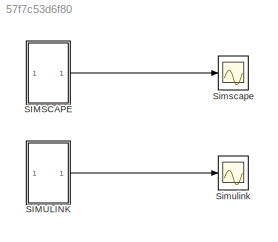
MODEL slx_57f7c53d6f80
KIND model
CONFIG AbsTol = auto
CONFIG EnableMultiTasking = off
CONFIG FixedStep = auto
CONFIG MaxStep = auto
CONFIG MinStep = auto
CONFIG RelTol = 1e-3
CONFIG SampleTimeConstraint = Unconstrained
CONFIG SolverName = VariableStepAuto
CONFIG StartTime = 0.0
CONFIG StopTime = 10
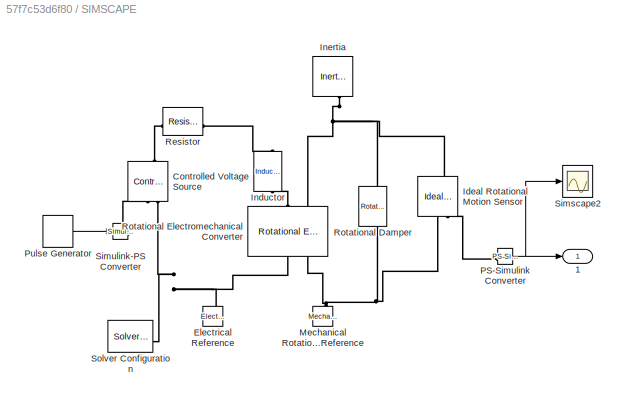
BLOCK [SubSystem] SIMSCAPE
BLOCK [Outport] SIMSCAPE/1
BLOCK [Reference] SIMSCAPE/Controlled Voltage Source  REF=fl_lib/Electrical/Electrical Sources/Controlled Voltage
Source
  NameLocation = right
  SourceBlock = fl_lib/Electrical/Electrical Sources/Controlled Voltage\nSource
  SourceType = Controlled Voltage\nSource
BLOCK [Reference] SIMSCAPE/Electrical Reference  REF=fl_lib/Electrical/Electrical Elements/Electrical Reference
  NameLocation = right
  SourceBlock = fl_lib/Electrical/Electrical Elements/Electrical Reference
  SourceType = Electrical Reference
BLOCK [Reference] SIMSCAPE/Ideal Rotational Motion Sensor  REF=fl_lib/Mechanical/Mechanical Sensors/Ideal Rotational
Motion Sensor
  NameLocation = left
  SourceBlock = fl_lib/Mechanical/Mechanical Sensors/Ideal Rotational\nMotion Sensor
  SourceType = Ideal Rotational\nMotion Sensor
BLOCK [Reference] SIMSCAPE/Inductor  REF=fl_lib/Electrical/Electrical Elements/Inductor
  NameLocation = left
  SourceBlock = fl_lib/Electrical/Electrical Elements/Inductor
  SourceType = Inductor
BLOCK [Reference] SIMSCAPE/Inertia  REF=fl_lib/Mechanical/Rotational Elements/Inertia
  NameLocation = left
  SourceBlock = fl_lib/Mechanical/Rotational Elements/Inertia
  SourceType = Inertia
BLOCK [Reference] SIMSCAPE/Mechanical Rotational Reference  REF=fl_lib/Mechanical/Rotational Elements/Mechanical
Rotational Reference
  NameLocation = right
  SourceBlock = fl_lib/Mechanical/Rotational Elements/Mechanical\nRotational Reference
  SourceType = Mechanical\nRotational Reference
BLOCK [Reference] SIMSCAPE/PS-Simulink Converter  REF=nesl_utility/PS-Simulink
Converter
  SourceBlock = nesl_utility/PS-Simulink\nConverter
  SourceType = PS-Simulink\nConverter
BLOCK [DiscretePulseGenerator] SIMSCAPE/Pulse Generator
  Amplitude = 24
  Period = 1/20000
  PulseType = Time based
  PulseWidth = 25
BLOCK [Reference] SIMSCAPE/Resistor  REF=fl_lib/Electrical/Electrical Elements/Resistor
  SourceBlock = fl_lib/Electrical/Electrical Elements/Resistor
  SourceType = Resistor
BLOCK [Reference] SIMSCAPE/Rotational Damper  REF=fl_lib/Mechanical/Rotational Elements/Rotational Damper
  NameLocation = left
  SourceBlock = fl_lib/Mechanical/Rotational Elements/Rotational Damper
  SourceType = Rotational Damper
BLOCK [Reference] SIMSCAPE/Rotational Electromechanical Converter  REF=fl_lib/Electrical/Electrical Elements/Rotational
Electromechanical
Converter
  NameLocation = right
  SourceBlock = fl_lib/Electrical/Electrical Elements/Rotational\nElectromechanical\nConverter
  SourceType = Rotational\nElectromechanical\nConverter
BLOCK [Scope] SIMSCAPE/Simscape2
  Floating = off
  NumInputPorts = 1
  ScopeSpecificationString = Simulink.scopes.TimeScopeBlockCfg('CurrentConfiguration', extmgr.ConfigurationSet(extmgr.Configuration('Core','General UI',true),extmgr.Configuration('Core','Source UI',true),extmgr.Configuration('Sources','WiredSimulink',true,'DataLoggingVariableName','ScopeData3'),extmgr.Configuration('Visuals','Time Domain',true,'SerializedDisplays',{struct('MinYLimReal','-2.99999','MaxYLimReal','26.9999','YLab...<+1579ch>
BLOCK [Reference] SIMSCAPE/Simulink-PS Converter  REF=nesl_utility/Simulink-PS
Converter
  SourceBlock = nesl_utility/Simulink-PS\nConverter
  SourceType = Simulink-PS\nConverter
BLOCK [Reference] SIMSCAPE/Solver Configuration  REF=nesl_utility/Solver
Configuration
  SourceBlock = nesl_utility/Solver\nConfiguration
  SourceType = Solver\nConfiguration
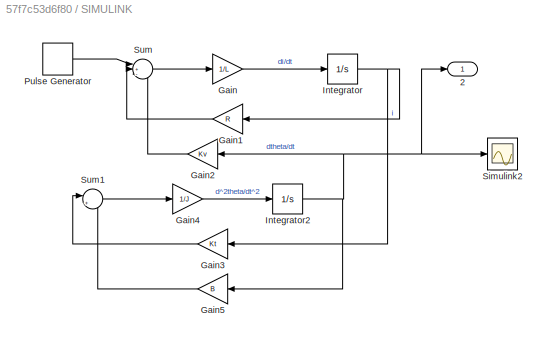
BLOCK [SubSystem] SIMULINK
BLOCK [Outport] SIMULINK/2
BLOCK [Gain] SIMULINK/Gain
  Gain = 1/L
BLOCK [Gain] SIMULINK/Gain1
  Gain = R
  NameLocation = top
BLOCK [Gain] SIMULINK/Gain2
  Gain = Kv
  NameLocation = top
BLOCK [Gain] SIMULINK/Gain3
  Gain = Kt
  NameLocation = top
BLOCK [Gain] SIMULINK/Gain4
  Gain = 1/J
BLOCK [Gain] SIMULINK/Gain5
  Gain = B
  NameLocation = top
BLOCK [Integrator] SIMULINK/Integrator
BLOCK [Integrator] SIMULINK/Integrator2
BLOCK [DiscretePulseGenerator] SIMULINK/Pulse Generator
  Amplitude = 24
  Period = 1/20000
  PulseType = Time based
  PulseWidth = 25
BLOCK [Scope] SIMULINK/Simulink2
  Floating = off
  NumInputPorts = 1
  ScopeSpecificationString = Simulink.scopes.TimeScopeBlockCfg('CurrentConfiguration', extmgr.ConfigurationSet(extmgr.Configuration('Core','General UI',true),extmgr.Configuration('Core','Source UI',true),extmgr.Configuration('Sources','WiredSimulink',true,'DataLoggingVariableName','ScopeData2'),extmgr.Configuration('Visuals','Time Domain',true,'SerializedDisplays',{struct('MinYLimReal','-2.99999','MaxYLimReal','26.9999','YLab...<+1597ch>
BLOCK [Sum] SIMULINK/Sum
  Inputs = |+--
BLOCK [Sum] SIMULINK/Sum1
  Inputs = |+-
BLOCK [Scope] Simscape
  Floating = off
  NumInputPorts = 1
  ScopeSpecificationString = Simulink.scopes.TimeScopeBlockCfg('CurrentConfiguration', extmgr.ConfigurationSet(extmgr.Configuration('Core','General UI',true),extmgr.Configuration('Core','Source UI',true),extmgr.Configuration('Sources','WiredSimulink',true),extmgr.Configuration('Visuals','Time Domain',true,'SerializedDisplays',{struct('MinYLimReal','-2.99999','MaxYLimReal','26.9999','YLabelReal','','MinYLimMag','0.00000','MaxY...<+1580ch>
BLOCK [Scope] Simulink
  Floating = off
  NumInputPorts = 1
  ScopeSpecificationString = Simulink.scopes.TimeScopeBlockCfg('CurrentConfiguration', extmgr.ConfigurationSet(extmgr.Configuration('Core','General UI',true),extmgr.Configuration('Core','Source UI',true),extmgr.Configuration('Sources','WiredSimulink',true,'DataLoggingVariableName','ScopeData1'),extmgr.Configuration('Visuals','Time Domain',true,'SerializedDisplays',{struct('MinYLimReal','-2.99999','MaxYLimReal','26.9999','YLab...<+1554ch>
NET SIMSCAPE/PS-Simulink Converter:1 -> SIMSCAPE/1:1, SIMSCAPE/Simscape2:1
LINE SIMSCAPE/Pulse Generator:1 -> SIMSCAPE/Simulink-PS Converter:1
LINE SIMSCAPE:1 -> Simscape:1
LINE SIMULINK/Gain1:1 -> SIMULINK/Sum:2
LINE SIMULINK/Gain2:1 -> SIMULINK/Sum:3
LINE SIMULINK/Gain3:1 -> SIMULINK/Sum1:1
LINE SIMULINK/Gain4:1 -> SIMULINK/Integrator2:1
LINE SIMULINK/Gain5:1 -> SIMULINK/Sum1:2
LINE SIMULINK/Gain:1 -> SIMULINK/Integrator:1
NET SIMULINK/Integrator2:1 -> SIMULINK/2:1, SIMULINK/Gain2:1, SIMULINK/Gain5:1, SIMULINK/Simulink2:1
NET SIMULINK/Integrator:1 -> SIMULINK/Gain1:1, SIMULINK/Gain3:1
LINE SIMULINK/Pulse Generator:1 -> SIMULINK/Sum:1
LINE SIMULINK/Sum1:1 -> SIMULINK/Gain4:1
LINE SIMULINK/Sum:1 -> SIMULINK/Gain:1
LINE SIMULINK:1 -> Simulink:1
PLINE SIMSCAPE/Controlled Voltage Source:LConn1 -- SIMSCAPE/Resistor:LConn1
PLINE SIMSCAPE/Controlled Voltage Source:RConn1 -- SIMSCAPE/Simulink-PS Converter:RConn1
PNET net1: SIMSCAPE/Controlled Voltage Source:RConn2 -- SIMSCAPE/Electrical Reference:LConn1 -- SIMSCAPE/Rotational Electromechanical Converter:RConn1 -- SIMSCAPE/Solver Configuration:RConn1
PNET net2: SIMSCAPE/Ideal Rotational Motion Sensor:LConn1 -- SIMSCAPE/Inertia:LConn1 -- SIMSCAPE/Rotational Damper:LConn1 -- SIMSCAPE/Rotational Electromechanical Converter:LConn2
PNET net3: SIMSCAPE/Ideal Rotational Motion Sensor:RConn1 -- SIMSCAPE/Mechanical Rotational Reference:LConn1 -- SIMSCAPE/Rotational Damper:RConn1 -- SIMSCAPE/Rotational Electromechanical Converter:RConn2
PLINE SIMSCAPE/Ideal Rotational Motion Sensor:RConn2 -- SIMSCAPE/PS-Simulink Converter:LConn1
PLINE SIMSCAPE/Inductor:LConn1 -- SIMSCAPE/Resistor:RConn1
PLINE SIMSCAPE/Inductor:RConn1 -- SIMSCAPE/Rotational Electromechanical Converter:LConn1
note: NET lines group one-source signal fan-out (src -> all destinations, sorted); 1:1 wires keep LINE; PNET lines group multi-terminal physical nets as a canonical sorted terminal list (undirected conserving connections); 2-terminal nets keep the pairwise PLINE form
